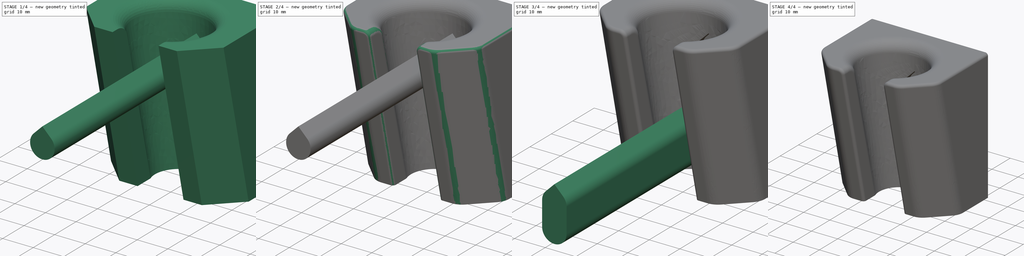
[diagram: build sequence overview — one tinted view per stage of 4, left to right]
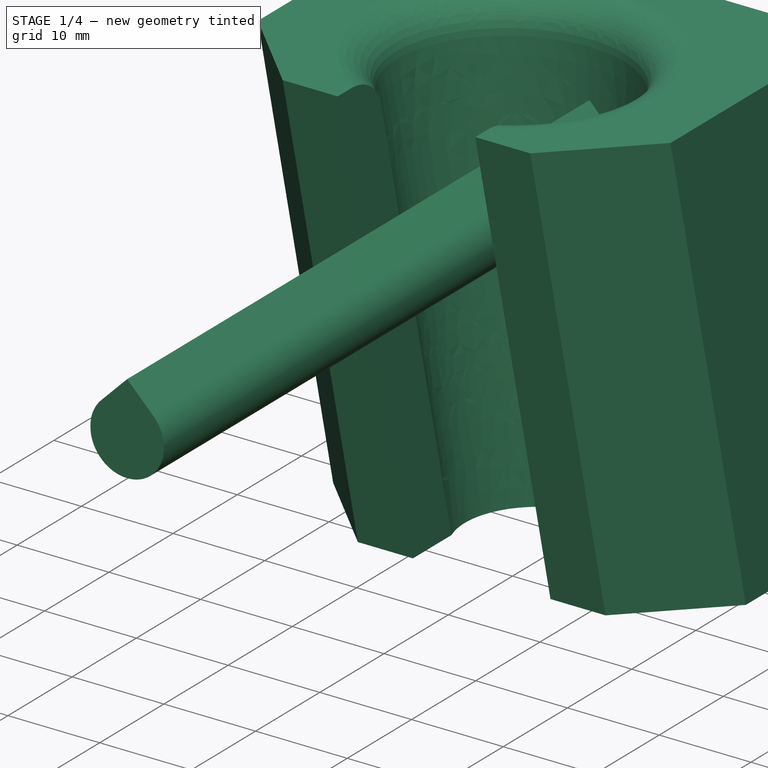
[diagram: stage 1 of 4 — iso view after this stage's code; geometry added in this stage tinted green]
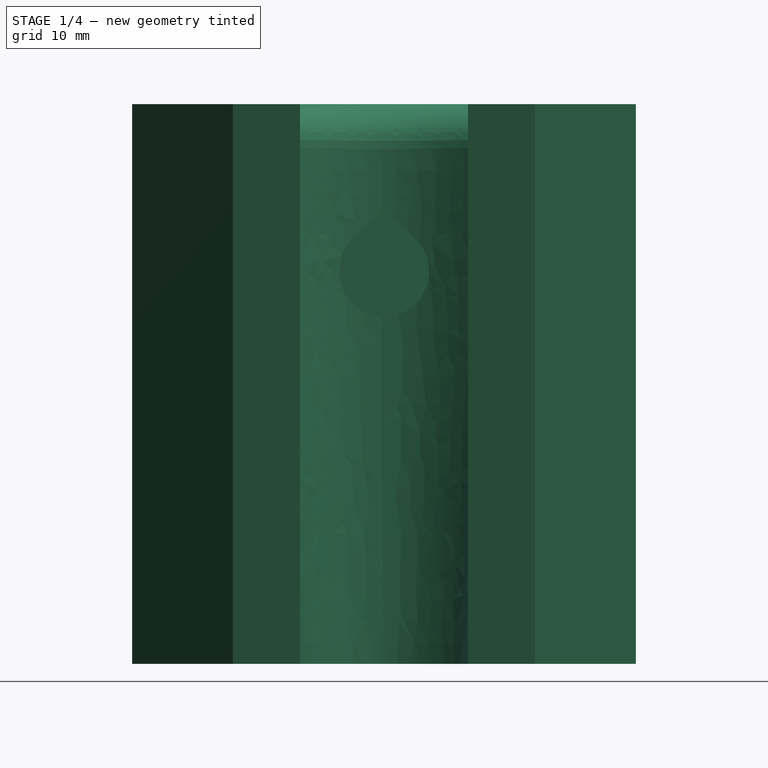
[diagram: stage 1 of 4 — front view after this stage's code; geometry added in this stage tinted green]
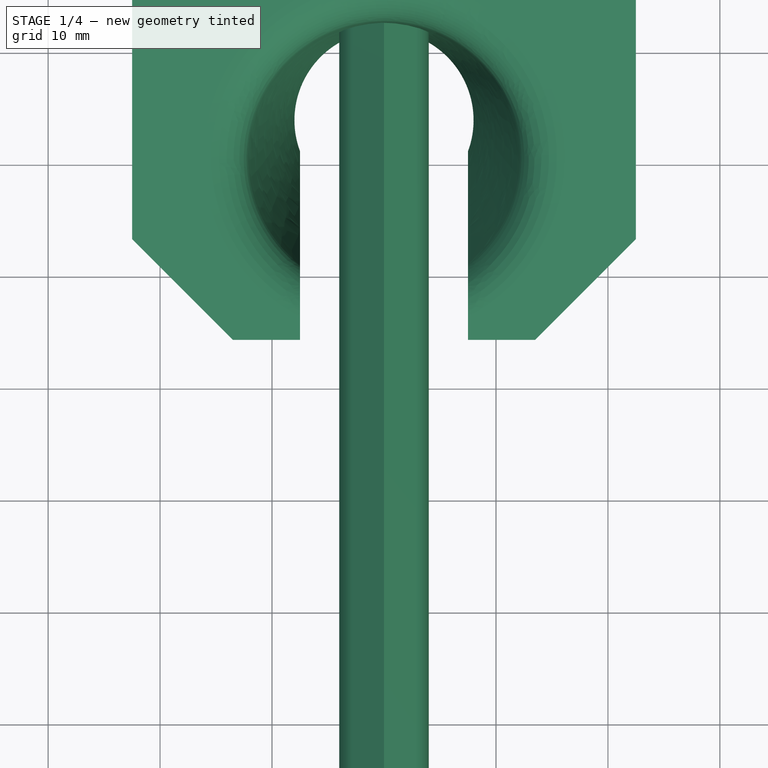
[diagram: stage 1 of 4 — top view after this stage's code; geometry added in this stage tinted green]
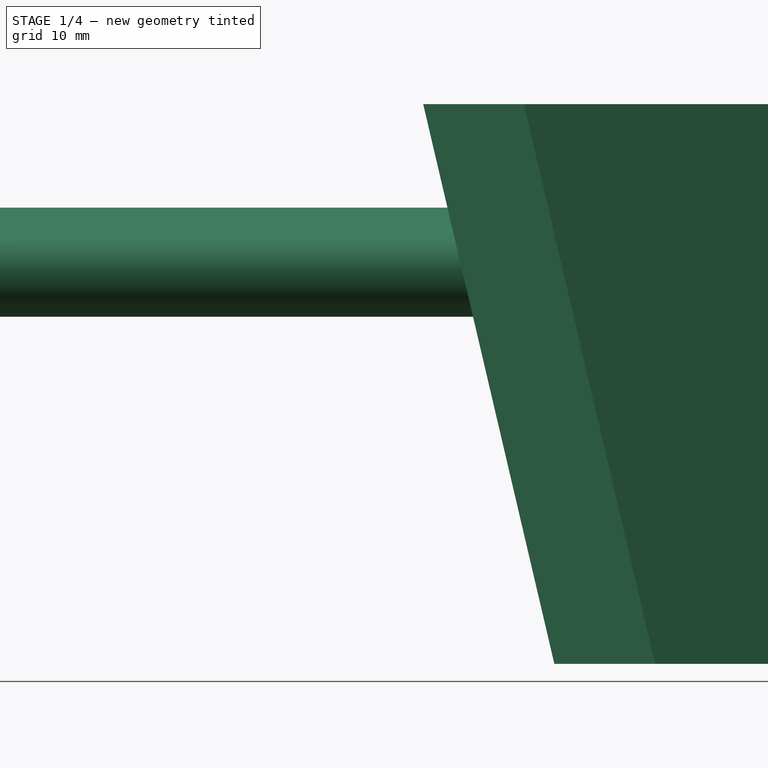
[diagram: stage 1 of 4 — right view after this stage's code; geometry added in this stage tinted green]
FCSTD DOCUMENT  (FreeCAD 0.16R6707 (Git))
Label: soporte_ducha
License: All rights reserved
LicenseURL: http://en.wikipedia.org/wiki/All_rights_reserved
objects: Sketcher::SketchObject×6, PartDesign::Fillet×4, PartDesign::Pad×4, Part::Cut×4, Part::Loft×1
note: 23 computed .brp shape members not serialized (recipe doc carries the construction recipe); baked Part::Feature solids carry a one-line shape summary decoded from their .brp

FEATURE [Sketcher::SketchObject] Sketch  label="Sketch0"
  Placement = pos=(0,0,50) rot=(0,0,1;0rad)
  sketch-geometry (11):
    g0: LineSegment StartX=-22.5 StartY=0 StartZ=0 EndX=22.5 EndY=0 EndZ=0
    g1: LineSegment StartX=22.5 StartY=0 StartZ=0 EndX=22.5 EndY=-27.5 EndZ=0
    g2: LineSegment StartX=22.5 StartY=-27.5 StartZ=0 EndX=13.5 EndY=-36.5 EndZ=0
    g3: LineSegment StartX=13.5 StartY=-36.5 StartZ=0 EndX=7.5 EndY=-36.5 EndZ=0
    g4: LineSegment StartX=7.5 StartY=-36.5 StartZ=0 EndX=7.5 EndY=-30.5 EndZ=0
    g5: LineSegment StartX=-22.5 StartY=0 StartZ=0 EndX=-22.5 EndY=-27.5 EndZ=0
    g6: LineSegment StartX=-22.5 StartY=-27.5 StartZ=0 EndX=-13.5 EndY=-36.5 EndZ=0
    g7: LineSegment StartX=-13.5 StartY=-36.5 StartZ=0 EndX=-7.5 EndY=-36.5 EndZ=0
    g8: LineSegment StartX=-7.5 StartY=-36.5 StartZ=0 EndX=-7.5 EndY=-30.5 EndZ=0
    g9: ArcOfCircle CenterX=0 CenterY=-20.5 CenterZ=0 NormalX=0 NormalY=0 NormalZ=1 Radius=12.5 StartAngle=5.35589 EndAngle=10.3521
    g10: LineSegment [constr] StartX=0 StartY=0 StartZ=0 EndX=0 EndY=-8 EndZ=0
  constraints (33):
    c: Horizontal(g0)
    c: Coincident(g0,g1)
    c: Vertical(g1)
    c: Coincident(g1,g2)
    c: Coincident(g2,g3)
    c: Coincident(g3,g4)
    c: Vertical(g4)
    c: Vertical(g5)
    c: Coincident(g5,g6)
    c: Coincident(g6,g7)
    c: Horizontal(g7)
    c: Coincident(g7,g8)
    c: Coincident(g0,g5)
    c: PointOnObject(g0,g-1)
    c: Horizontal(g3)
    c: Vertical(g8)
    c: Symmetric(g0,g0,g-2)
    c: Symmetric(g4,g8,g-2)
    c: Symmetric(g2,g6,g-2)
    c: PointOnObject(g9,g-2)
    c: Coincident(g9,g4)
    c: Coincident(g9,g8)
    c: Radius(g9) = 12.5
    c: DistanceX(g8,g4) = 15
    c: Coincident(g10,g-1)
    c: PointOnObject(g10,g9)
    c: Vertical(g10)
    c: DistanceY(g10) = -8
    c: DistanceX(g0) = 45
    c: Symmetric(g1,g5,g-2)
    c: DistanceY(g4) = 6
    c: Angle(g-1,g2) = 0.785398
    c: DistanceX(g3) = -6
FEATURE [Sketcher::SketchObject] Sketch001  label="Sketch1"
  sketch-geometry (11):
    g0: LineSegment StartX=-22.5 StartY=0 StartZ=0 EndX=22.5 EndY=0 EndZ=0
    g1: LineSegment StartX=22.5 StartY=0 StartZ=0 EndX=22.5 EndY=-15.7839 EndZ=0
    g2: LineSegment StartX=22.5 StartY=-15.7839 StartZ=0 EndX=13.5 EndY=-24.7839 EndZ=0
    g3: LineSegment StartX=13.5 StartY=-24.7839 StartZ=0 EndX=7.5 EndY=-24.7839 EndZ=0
    g4: LineSegment StartX=7.5 StartY=-24.7839 StartZ=0 EndX=7.5 EndY=-18.7839 EndZ=0
    g5: LineSegment StartX=-22.5 StartY=0 StartZ=0 EndX=-22.5 EndY=-15.7839 EndZ=0
    g6: LineSegment StartX=-22.5 StartY=-15.7839 StartZ=0 EndX=-13.5 EndY=-24.7839 EndZ=0
    g7: LineSegment StartX=-13.5 StartY=-24.7839 StartZ=0 EndX=-7.5 EndY=-24.7839 EndZ=0
    g8: LineSegment StartX=-7.5 StartY=-24.7839 StartZ=0 EndX=-7.5 EndY=-18.7839 EndZ=0
    g9: ArcOfCircle CenterX=0 CenterY=-16 CenterZ=0 NormalX=0 NormalY=0 NormalZ=1 Radius=8 StartAngle=5.92776 EndAngle=9.7802
    g10: LineSegment [constr] StartX=0 StartY=0 StartZ=0 EndX=0 EndY=-8 EndZ=0
  constraints (33):
    c: Horizontal(g0)
    c: Coincident(g0,g1)
    c: Vertical(g1)
    c: Coincident(g1,g2)
    c: Coincident(g2,g3)
    c: Coincident(g3,g4)
    c: Vertical(g4)
    c: Vertical(g5)
    c: Coincident(g5,g6)
    c: Coincident(g6,g7)
    c: Horizontal(g7)
    c: Coincident(g7,g8)
    c: Coincident(g0,g5)
    c: PointOnObject(g0,g-1)
    c: Horizontal(g3)
    c: Vertical(g8)
    c: Symmetric(g0,g0,g-2)
    c: Symmetric(g4,g8,g-2)
    c: Symmetric(g2,g6,g-2)
    c: PointOnObject(g9,g-2)
    c: Coincident(g9,g4)
    c: Coincident(g9,g8)
    c: Radius(g9) = 8
    c: DistanceX(g8,g4) = 15
    c: Coincident(g10,g-1)
    c: PointOnObject(g10,g9)
    c: Vertical(g10)
    c: DistanceY(g10) = -8
    c: DistanceX(g0) = 45
    c: Symmetric(g1,g5,g-2)
    c: DistanceY(g4) = 6
    c: Angle(g-1,g2) = 0.785398
    c: DistanceX(g3) = -6
FEATURE [Part::Loft] Loft
  Closed = false
  Ruled = false
  Sections = -> [Sketch001,Sketch]
  Solid = true
FEATURE [PartDesign::Fillet] Fillet
  Base = -> Loft [Edge19]
  Radius = 4
FEATURE [PartDesign::Pad] Pad003  label="TornilloSuperior2"
  Length = 75
  Length2 = 100
  Placement = pos=(0,-80,0) rot=(1,0,0;1.5708rad)
  Reversed = true
  Sketch = -> Sketch006
  Type = 0
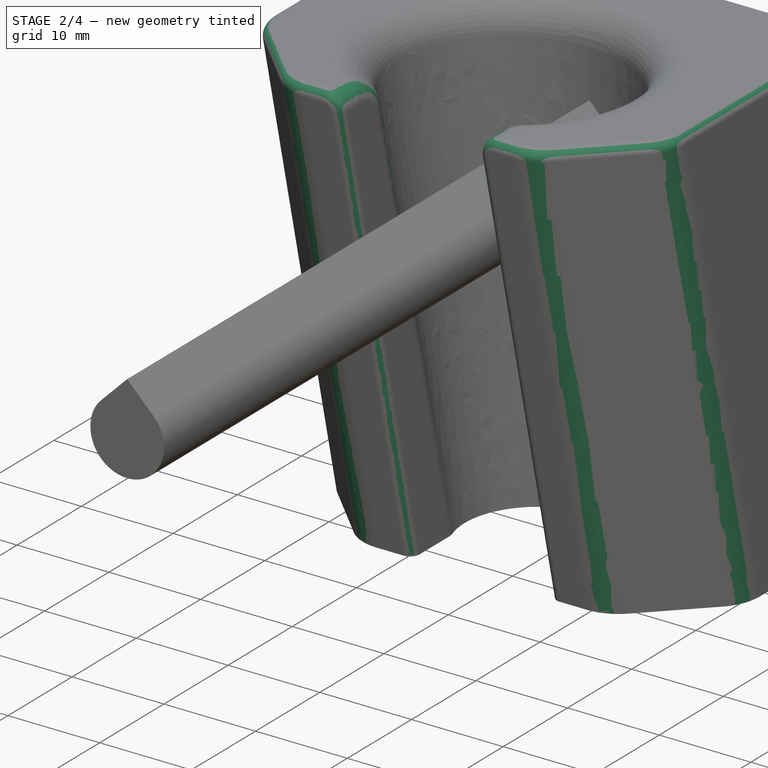
[diagram: stage 2 of 4 — iso view after this stage's code; geometry added in this stage tinted green]
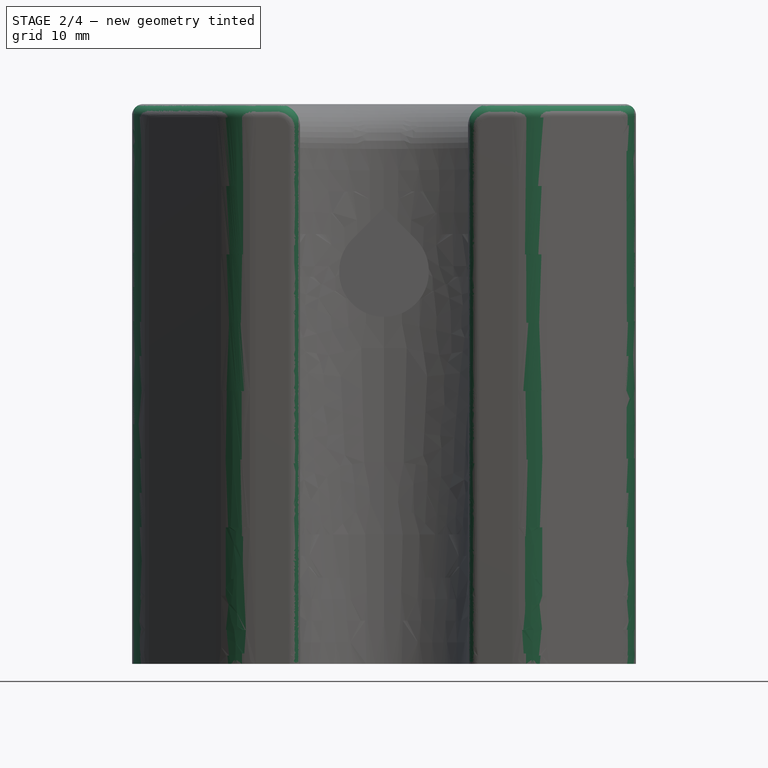
[diagram: stage 2 of 4 — front view after this stage's code; geometry added in this stage tinted green]
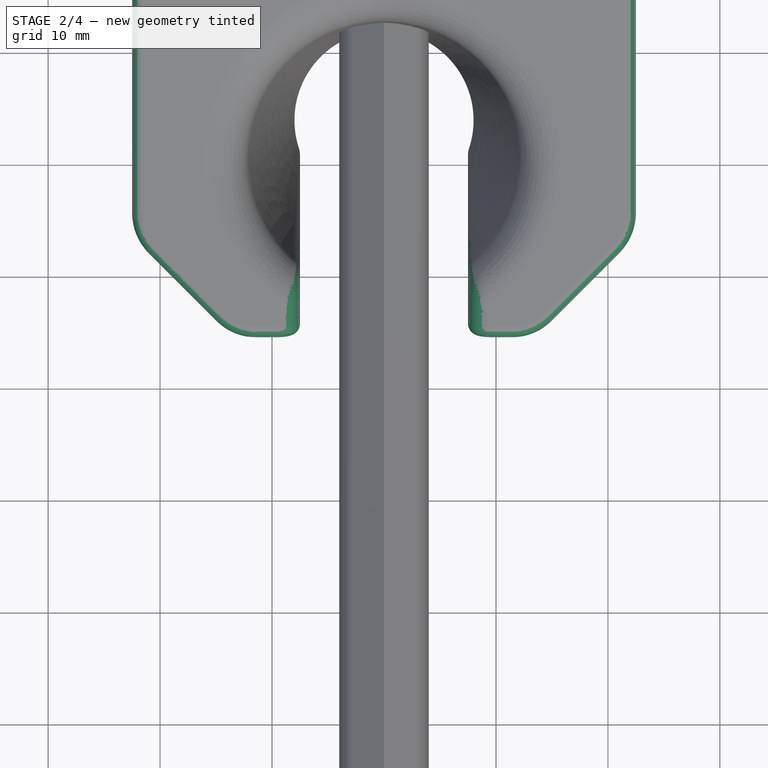
[diagram: stage 2 of 4 — top view after this stage's code; geometry added in this stage tinted green]
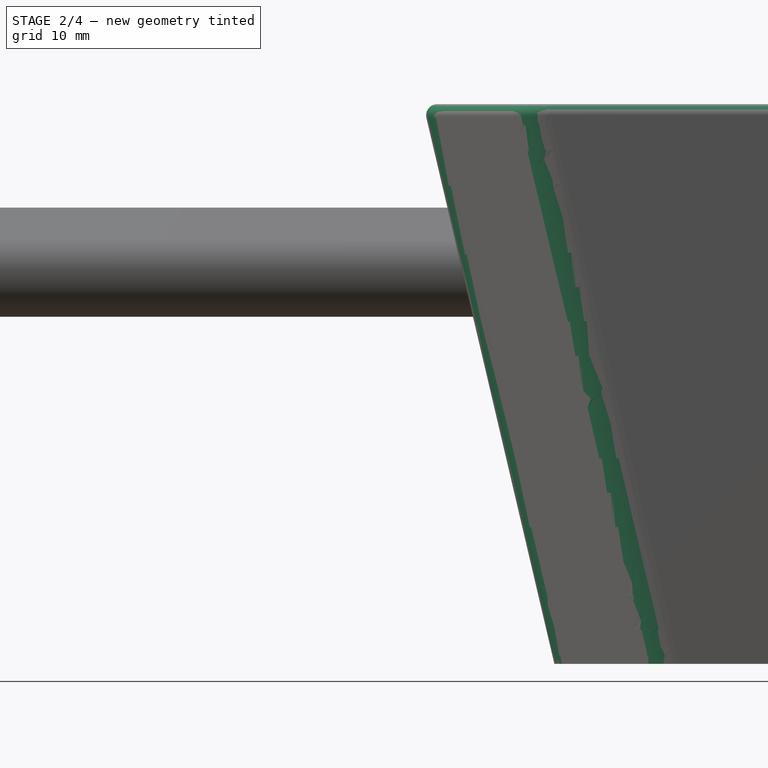
[diagram: stage 2 of 4 — right view after this stage's code; geometry added in this stage tinted green]
FEATURE [PartDesign::Fillet] Fillet001
  Base = -> Fillet [Edge20,Edge4]
  Radius = 2
FEATURE [PartDesign::Fillet] Fillet002
  Base = -> Fillet001 [Edge21,Edge28,Edge40,Edge42]
  Radius = 5
FEATURE [PartDesign::Fillet] Fillet003
  Base = -> Fillet002 [Edge27,Edge51]
  Radius = 1
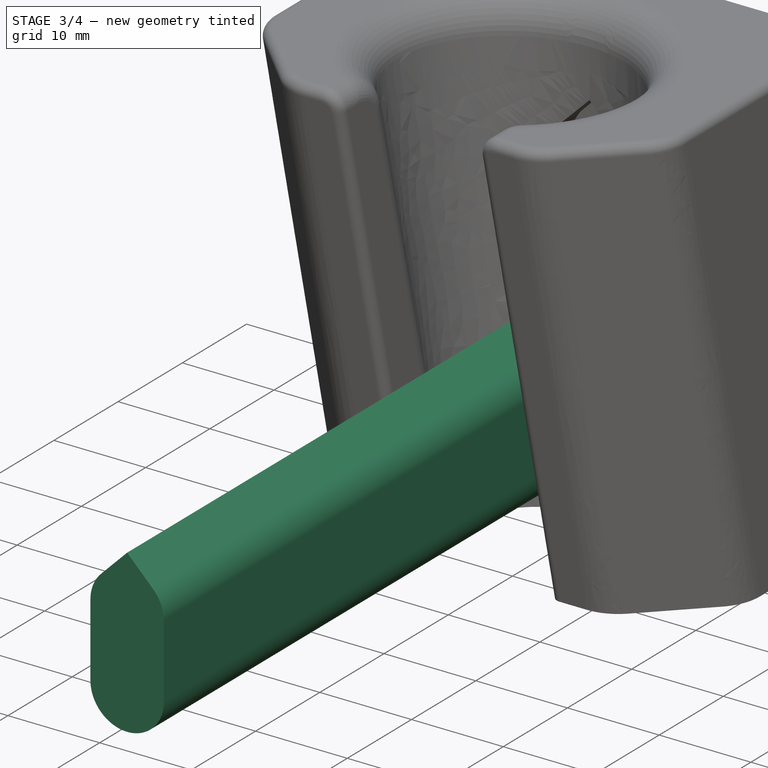
[diagram: stage 3 of 4 — iso view after this stage's code; geometry added in this stage tinted green]
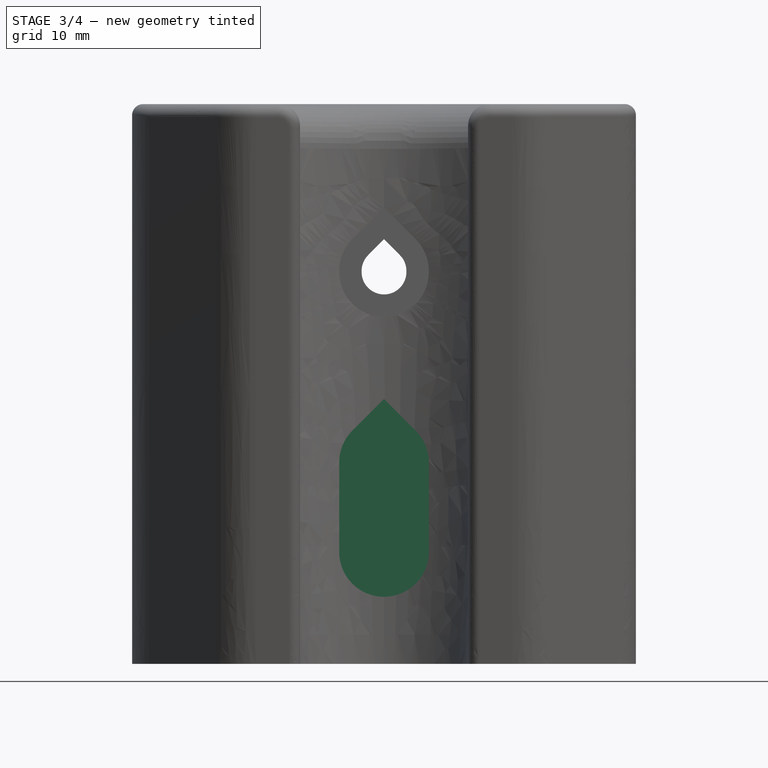
[diagram: stage 3 of 4 — front view after this stage's code; geometry added in this stage tinted green]
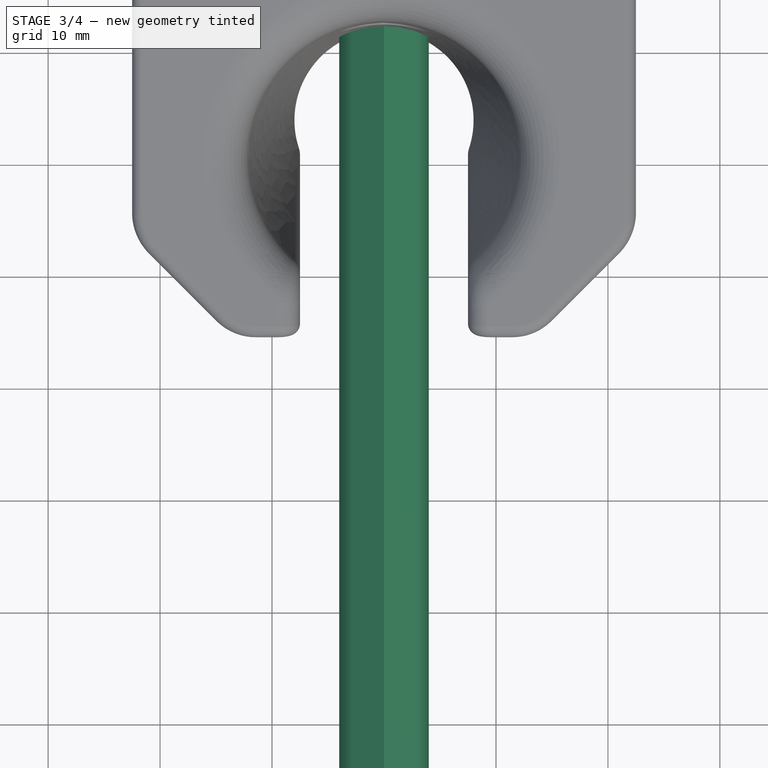
[diagram: stage 3 of 4 — top view after this stage's code; geometry added in this stage tinted green]
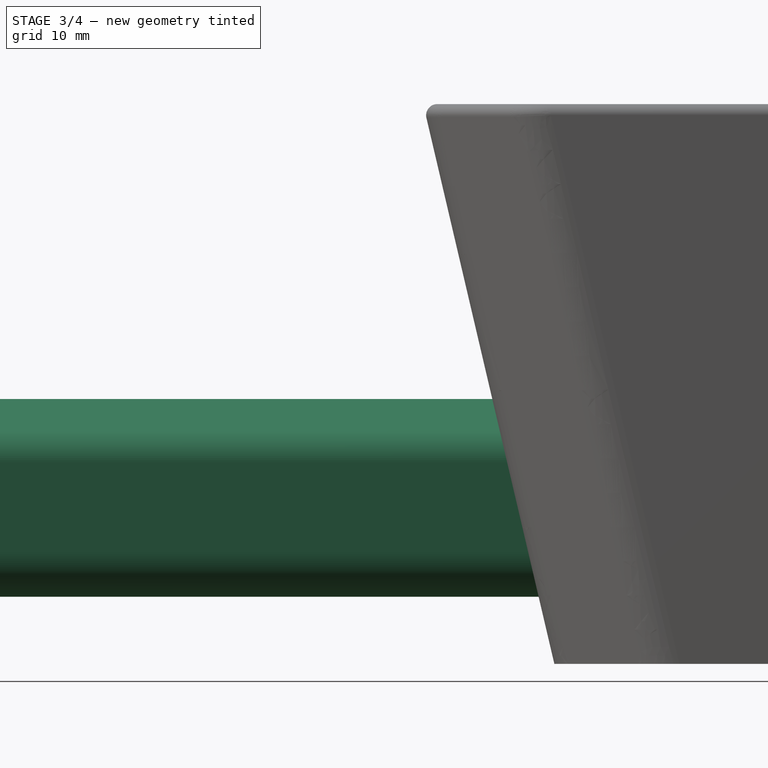
[diagram: stage 3 of 4 — right view after this stage's code; geometry added in this stage tinted green]
FEATURE [Sketcher::SketchObject] Sketch004  label="SketchTornilloInferior2"
  Placement = pos=(0,-80,0) rot=(1,0,0;1.5708rad)
  sketch-geometry (7):
    g0: ArcOfCircle CenterX=0 CenterY=18 CenterZ=0 NormalX=0 NormalY=0 NormalZ=1 Radius=4 StartAngle=0 EndAngle=0.785393
    g1: ArcOfCircle CenterX=0 CenterY=10 CenterZ=0 NormalX=0 NormalY=0 NormalZ=1 Radius=4 StartAngle=3.14159 EndAngle=6.28319
    g2: LineSegment StartX=-4 StartY=18 StartZ=0 EndX=-4 EndY=10 EndZ=0
    g3: LineSegment StartX=4 StartY=18 StartZ=0 EndX=4 EndY=10 EndZ=0
    g4: LineSegment StartX=0 StartY=23.6569 StartZ=0 EndX=-2.82841 EndY=20.8284 EndZ=0
    g5: LineSegment StartX=0 StartY=23.6569 StartZ=0 EndX=2.82844 EndY=20.8284 EndZ=0
    g6: ArcOfCircle CenterX=0 CenterY=18 CenterZ=0 NormalX=0 NormalY=0 NormalZ=1 Radius=4 StartAngle=2.35619 EndAngle=3.14159
  constraints (19):
    c: Tangent(g0,g3) = 1.5708
    c: Tangent(g6,g2) = -1.5708
    c: Tangent(g2,g1) = -1.5708
    c: Tangent(g3,g1) = 1.5708
    c: Vertical(g2)
    c: Equal(g0,g1)
    c: PointOnObject(g0,g-2)
    c: DistanceY(g3,g3) = 8
    c: DistanceX(g1,g1) = 8
    c: DistanceY(g-1,g1) = 10
    c: Angle(g-2,g4) = 2.35619
    c: Angle(g5,g-2) = 2.35619
    c: Equal(g0,g6)
    c: Coincident(g0,g6)
    c: Coincident(g5,g0)
    c: Coincident(g5,g4)
    c: Coincident(g6,g4)
    c: Tangent(g6,g4)
    c: Tangent(g5,g0)
FEATURE [PartDesign::Pad] Pad001  label="TornilloInferior2"
  Length = 75
  Length2 = 100
  Placement = pos=(0,-80,0) rot=(1,0,0;1.5708rad)
  Reversed = true
  Sketch = -> Sketch004
  Type = 0
FEATURE [Sketcher::SketchObject] Sketch005  label="SketchTornilloSuperior"
  Placement = pos=(0,-80,0) rot=(1,0,0;1.5708rad)
  sketch-geometry (7):
    g0: ArcOfCircle CenterX=0 CenterY=35.1 CenterZ=0 NormalX=0 NormalY=0 NormalZ=1 Radius=2 StartAngle=0 EndAngle=0.785402
    g1: ArcOfCircle CenterX=0 CenterY=35 CenterZ=0 NormalX=0 NormalY=0 NormalZ=1 Radius=2 StartAngle=3.14159 EndAngle=6.28319
    g2: LineSegment StartX=-2 StartY=35.1 StartZ=0 EndX=-2 EndY=35 EndZ=0
    g3: LineSegment StartX=2 StartY=35.1 StartZ=0 EndX=2 EndY=35 EndZ=0
    g4: LineSegment StartX=0 StartY=37.9284 StartZ=0 EndX=-1.41421 EndY=36.5142 EndZ=0
    g5: LineSegment StartX=0 StartY=37.9284 StartZ=0 EndX=1.41421 EndY=36.5142 EndZ=0
    g6: ArcOfCircle CenterX=0 CenterY=35.1 CenterZ=0 NormalX=0 NormalY=0 NormalZ=1 Radius=2 StartAngle=2.35619 EndAngle=3.14159
  constraints (19):
    c: Tangent(g0,g3) = 1.5708
    c: Tangent(g6,g2) = -1.5708
    c: Tangent(g2,g1) = -1.5708
    c: Tangent(g3,g1) = 1.5708
    c: Vertical(g2)
    c: Equal(g0,g1)
    c: PointOnObject(g0,g-2)
    c: DistanceY(g3,g3) = 0.1
    c: DistanceX(g1,g1) = 4
    c: DistanceY(g-1,g1) = 35
    c: Angle(g-2,g4) = 2.35619
    c: Angle(g5,g-2) = 2.35619
    c: Equal(g0,g6)
    c: Coincident(g0,g6)
    c: Coincident(g5,g0)
    c: Coincident(g5,g4)
    c: Coincident(g6,g4)
    c: Tangent(g6,g4)
    c: Tangent(g5,g0)
FEATURE [Sketcher::SketchObject] Sketch006  label="SketchTornilloSuperior2"
  Placement = pos=(0,-80,0) rot=(1,0,0;1.5708rad)
  sketch-geometry (7):
    g0: ArcOfCircle CenterX=0 CenterY=35.1 CenterZ=0 NormalX=0 NormalY=0 NormalZ=1 Radius=4 StartAngle=0 EndAngle=0.785399
    g1: ArcOfCircle CenterX=0 CenterY=35 CenterZ=0 NormalX=0 NormalY=0 NormalZ=1 Radius=4 StartAngle=3.14159 EndAngle=6.28319
    g2: LineSegment StartX=-4 StartY=35.1 StartZ=0 EndX=-4 EndY=35 EndZ=0
    g3: LineSegment StartX=4 StartY=35.1 StartZ=0 EndX=4 EndY=35 EndZ=0
    g4: LineSegment StartX=0 StartY=40.7569 StartZ=0 EndX=-2.82841 EndY=37.9284 EndZ=0
    g5: LineSegment StartX=0 StartY=40.7569 StartZ=0 EndX=2.82842 EndY=37.9284 EndZ=0
    g6: ArcOfCircle CenterX=0 CenterY=35.1 CenterZ=0 NormalX=0 NormalY=0 NormalZ=1 Radius=4 StartAngle=2.35619 EndAngle=3.14159
  constraints (19):
    c: Tangent(g0,g3) = 1.5708
    c: Tangent(g6,g2) = -1.5708
    c: Tangent(g2,g1) = -1.5708
    c: Tangent(g3,g1) = 1.5708
    c: Vertical(g2)
    c: Equal(g0,g1)
    c: PointOnObject(g0,g-2)
    c: DistanceY(g3,g3) = 0.1
    c: DistanceX(g1,g1) = 8
    c: DistanceY(g-1,g1) = 35
    c: Angle(g-2,g4) = 2.35619
    c: Angle(g5,g-2) = 2.35619
    c: Equal(g0,g6)
    c: Coincident(g0,g6)
    c: Coincident(g5,g0)
    c: Coincident(g5,g4)
    c: Coincident(g6,g4)
    c: Tangent(g6,g4)
    c: Tangent(g5,g0)
FEATURE [PartDesign::Pad] Pad002  label="TornilloSuperior"
  Length = 100
  Length2 = 100
  Placement = pos=(0,-80,0) rot=(1,0,0;1.5708rad)
  Reversed = true
  Sketch = -> Sketch005
  Type = 0
FEATURE [Part::Cut] Cut
  Base = -> Fillet003
  Tool = -> Pad003
FEATURE [Part::Cut] Cut001
  Base = -> Cut
  Tool = -> Pad002
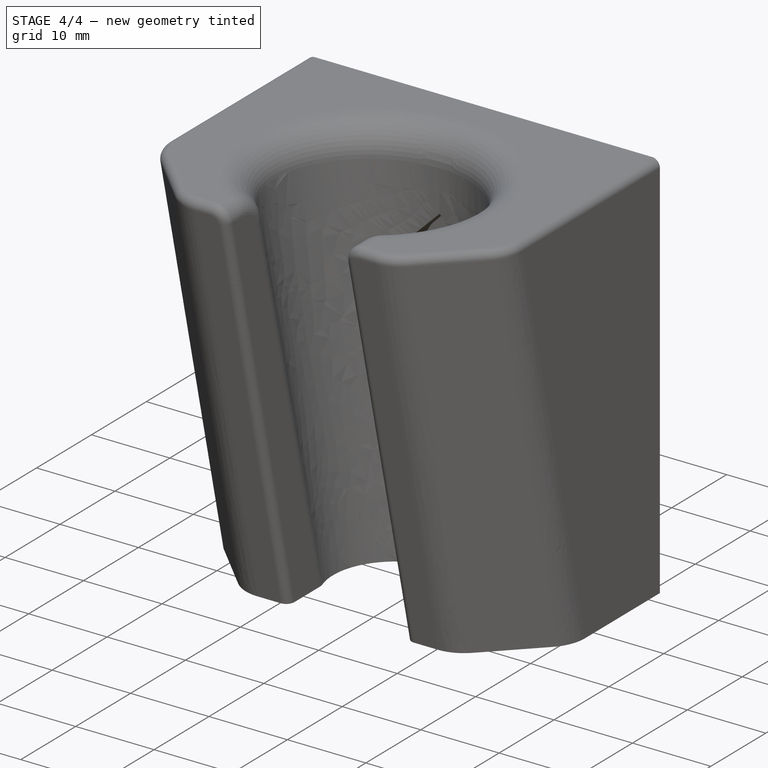
[diagram: stage 4 of 4 — iso view after this stage's code; geometry added in this stage tinted green]
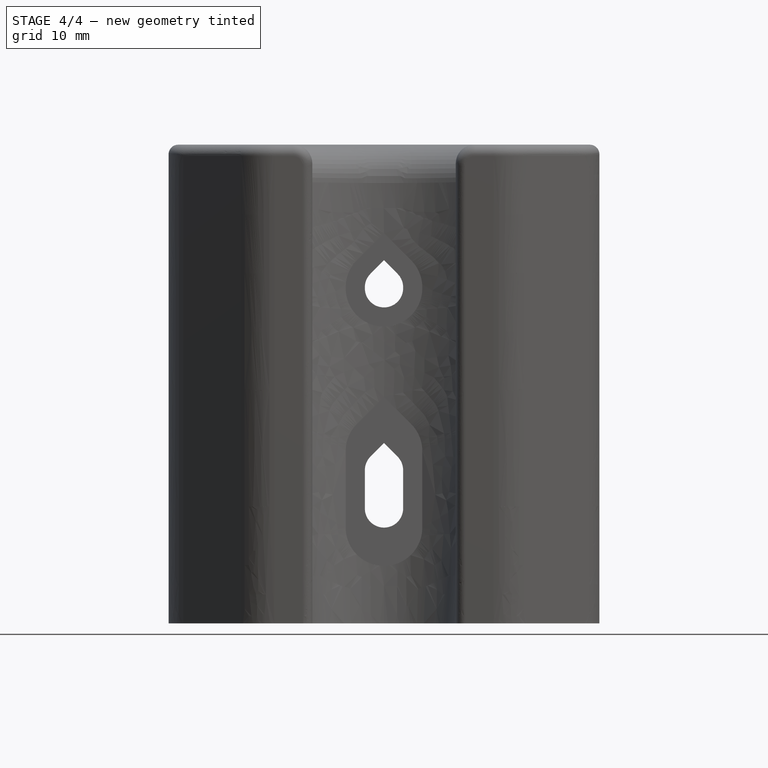
[diagram: stage 4 of 4 — front view after this stage's code; geometry added in this stage tinted green]
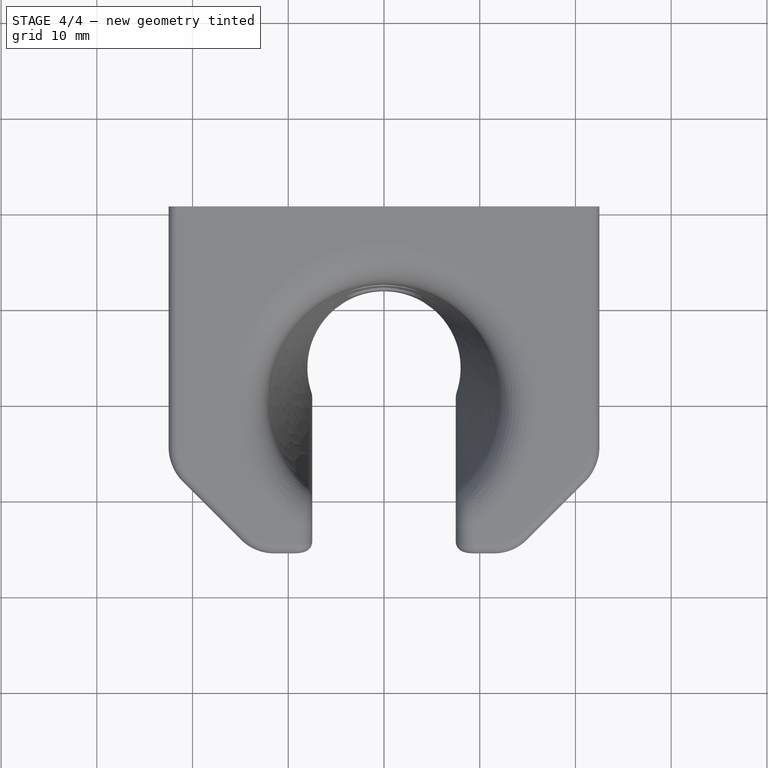
[diagram: stage 4 of 4 — top view after this stage's code; geometry added in this stage tinted green]
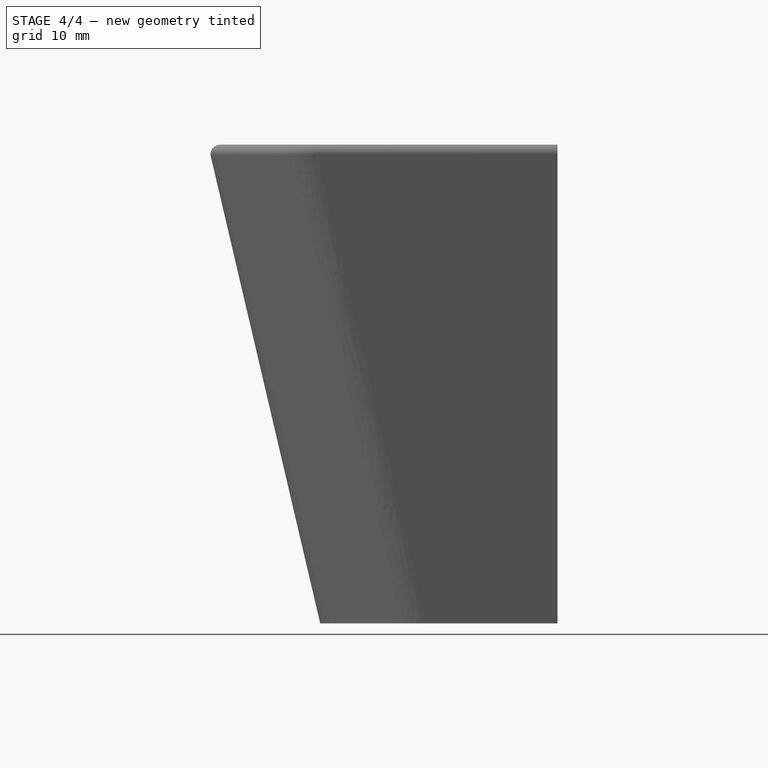
[diagram: stage 4 of 4 — right view after this stage's code; geometry added in this stage tinted green]
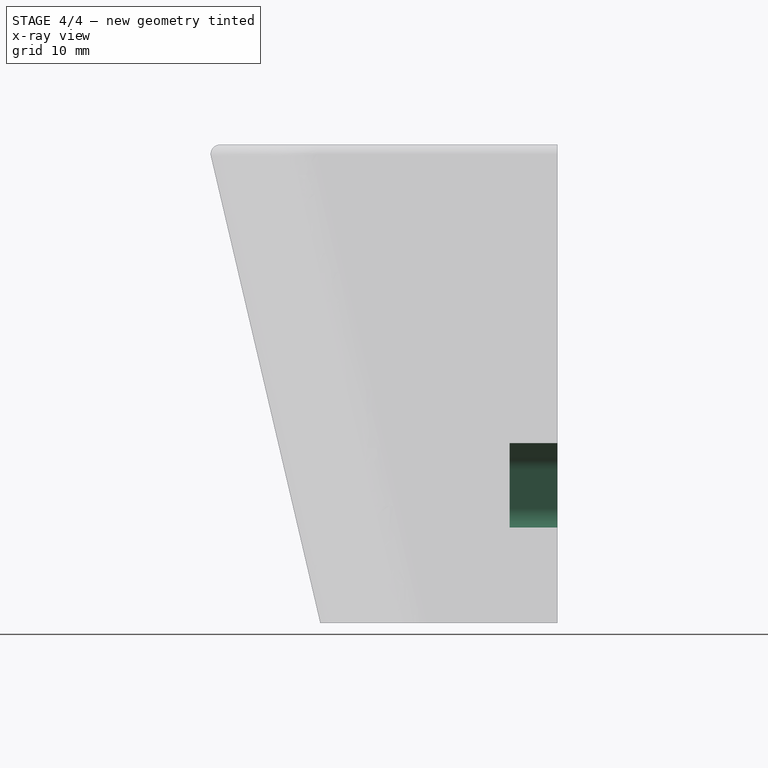
[diagram: stage 4 of 4 — x-ray composite at the right view; earlier geometry ghosted, this stage's added geometry solid]
FEATURE [Sketcher::SketchObject] Sketch003  label="SketchTornilloInferior"
  Placement = pos=(0,-80,0) rot=(1,0,0;1.5708rad)
  sketch-geometry (7):
    g0: ArcOfCircle CenterX=0 CenterY=16 CenterZ=0 NormalX=0 NormalY=0 NormalZ=1 Radius=2 StartAngle=0 EndAngle=0.785405
    g1: ArcOfCircle CenterX=0 CenterY=12 CenterZ=0 NormalX=0 NormalY=0 NormalZ=1 Radius=2 StartAngle=3.14159 EndAngle=6.28319
    g2: LineSegment StartX=-2 StartY=16 StartZ=0 EndX=-2 EndY=12 EndZ=0
    g3: LineSegment StartX=2 StartY=16 StartZ=0 EndX=2 EndY=12 EndZ=0
    g4: LineSegment StartX=0 StartY=18.8284 StartZ=0 EndX=-1.41421 EndY=17.4142 EndZ=0
    g5: LineSegment StartX=0 StartY=18.8284 StartZ=0 EndX=1.4142 EndY=17.4142 EndZ=0
    g6: ArcOfCircle CenterX=0 CenterY=16 CenterZ=0 NormalX=0 NormalY=0 NormalZ=1 Radius=2 StartAngle=2.35619 EndAngle=3.14159
  constraints (19):
    c: Tangent(g0,g3) = 1.5708
    c: Tangent(g6,g2) = -1.5708
    c: Tangent(g2,g1) = -1.5708
    c: Tangent(g3,g1) = 1.5708
    c: Vertical(g2)
    c: Equal(g0,g1)
    c: PointOnObject(g0,g-2)
    c: DistanceY(g3,g3) = 4
    c: DistanceX(g1,g1) = 4
    c: DistanceY(g-1,g1) = 12
    c: Angle(g-2,g4) = 2.35619
    c: Angle(g5,g-2) = 2.35619
    c: Equal(g0,g6)
    c: Coincident(g0,g6)
    c: Coincident(g5,g0)
    c: Coincident(g5,g4)
    c: Coincident(g6,g4)
    c: Tangent(g6,g4)
    c: Tangent(g5,g0)
FEATURE [PartDesign::Pad] Pad  label="TornilloInferior"
  Length = 100
  Length2 = 100
  Placement = pos=(0,-80,0) rot=(1,0,0;1.5708rad)
  Reversed = true
  Sketch = -> Sketch003
  Type = 0
FEATURE [Part::Cut] Cut002
  Base = -> Cut001
  Tool = -> Pad001
FEATURE [Part::Cut] Cut003
  Base = -> Cut002
  Tool = -> Pad
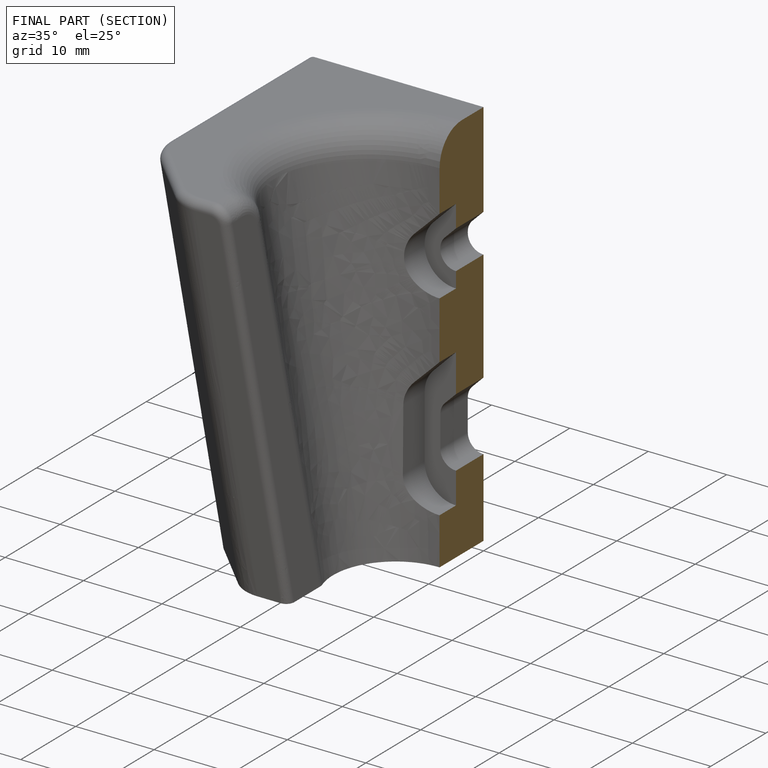
[diagram: finished part — half-section view (interior)]
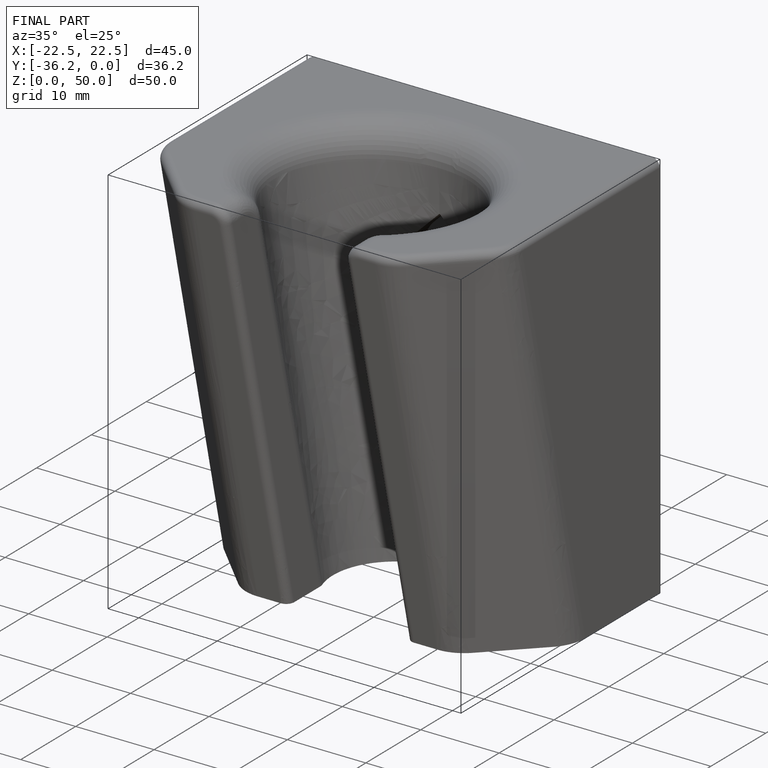
[diagram: finished part — iso view with bounding-box wireframe]
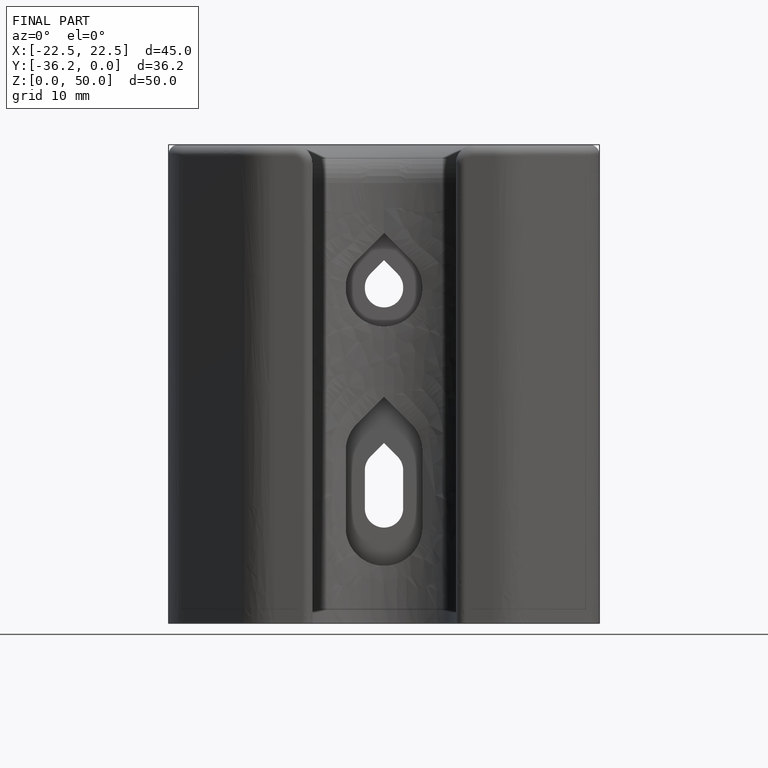
[diagram: finished part — front view with bounding-box wireframe]
